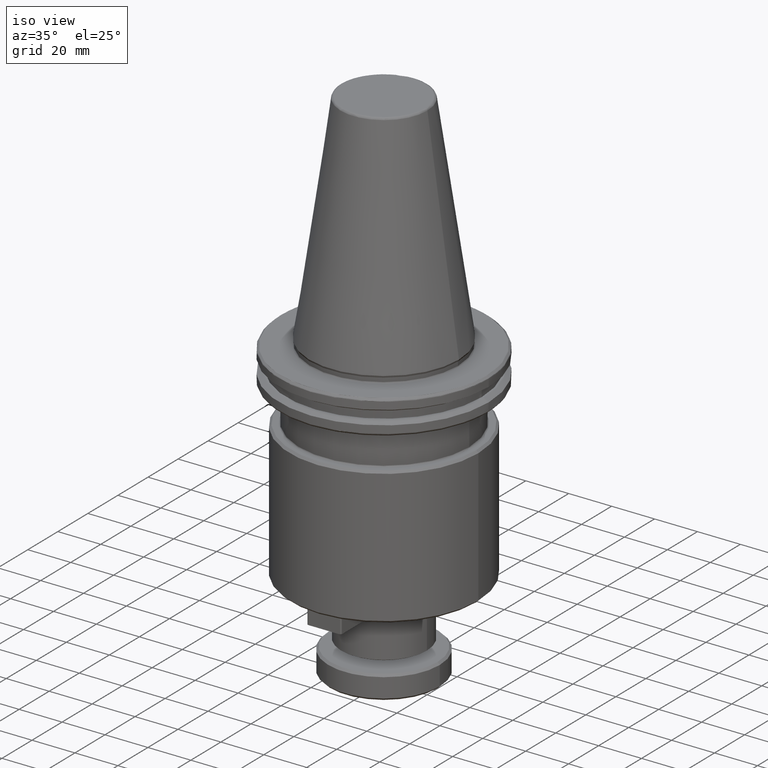
[diagram: clean part render]
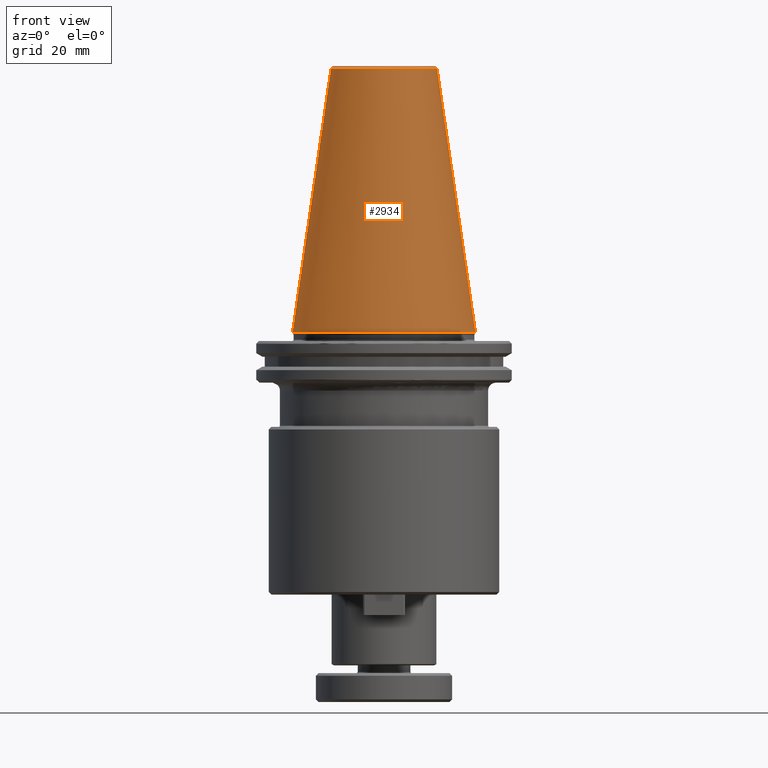
[diagram: tour spotlight — one face highlighted and labeled with its STEP entity id]
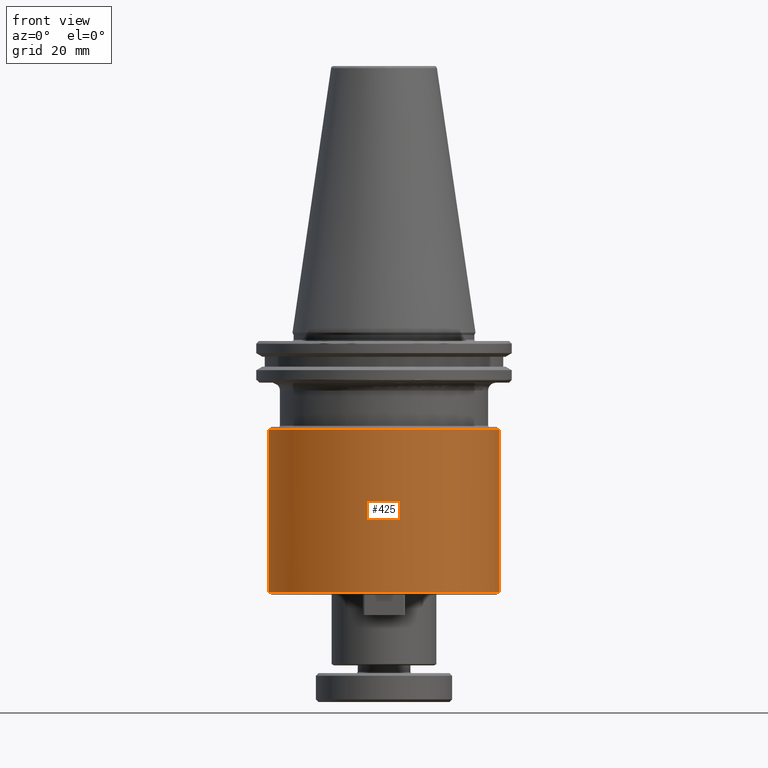
[diagram: tour spotlight — one face highlighted and labeled with its STEP entity id]
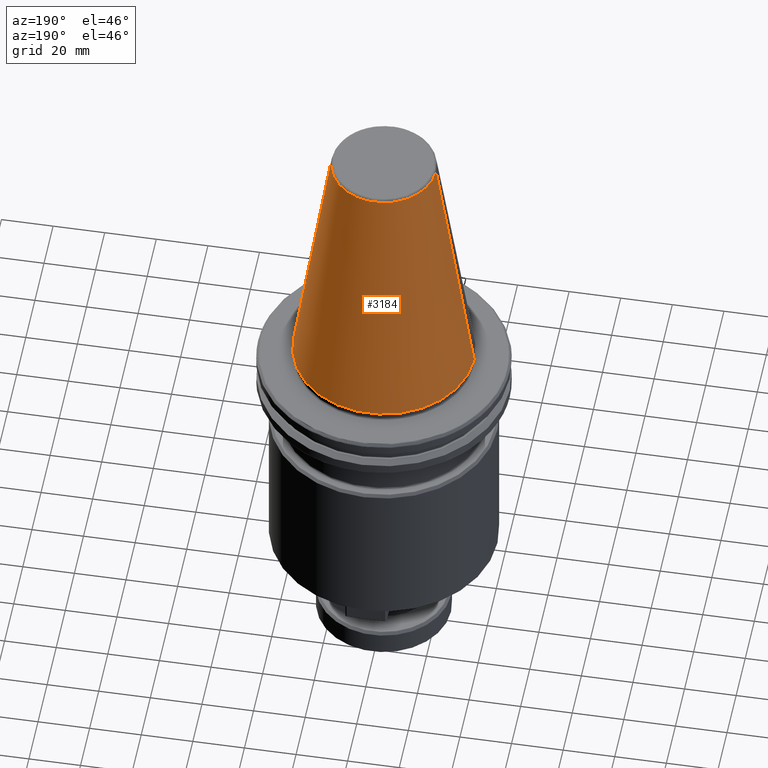
[diagram: tour spotlight — one face highlighted and labeled with its STEP entity id]
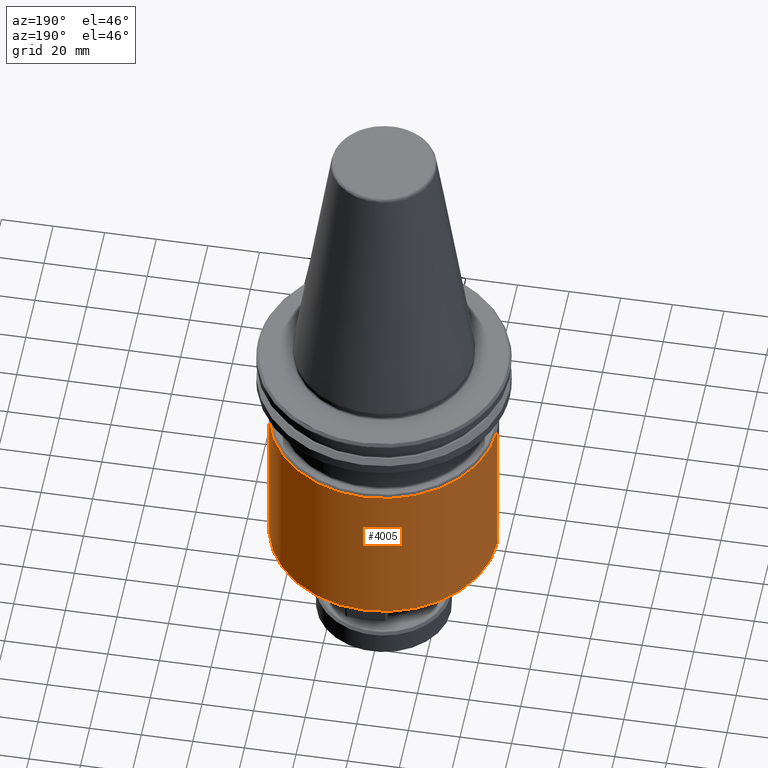
[diagram: tour spotlight — one face highlighted and labeled with its STEP entity id]
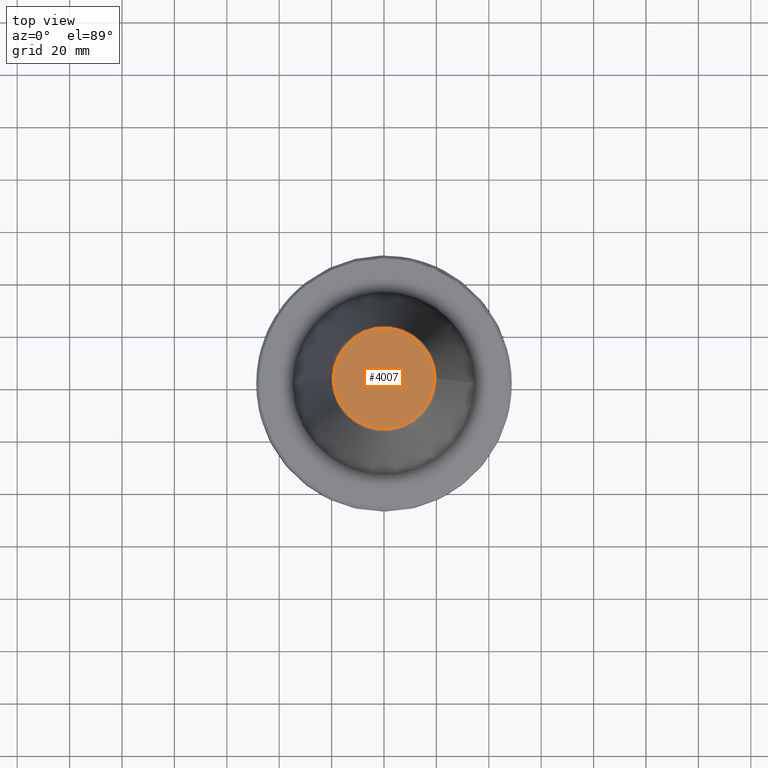
[diagram: tour spotlight — one face highlighted and labeled with its STEP entity id]
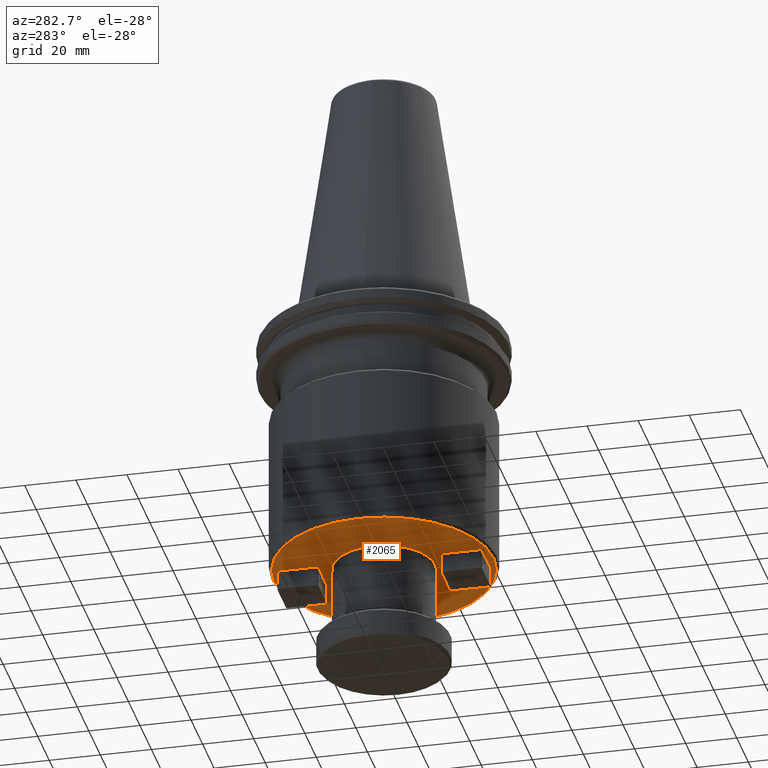
[diagram: tour spotlight — one face highlighted and labeled with its STEP entity id]
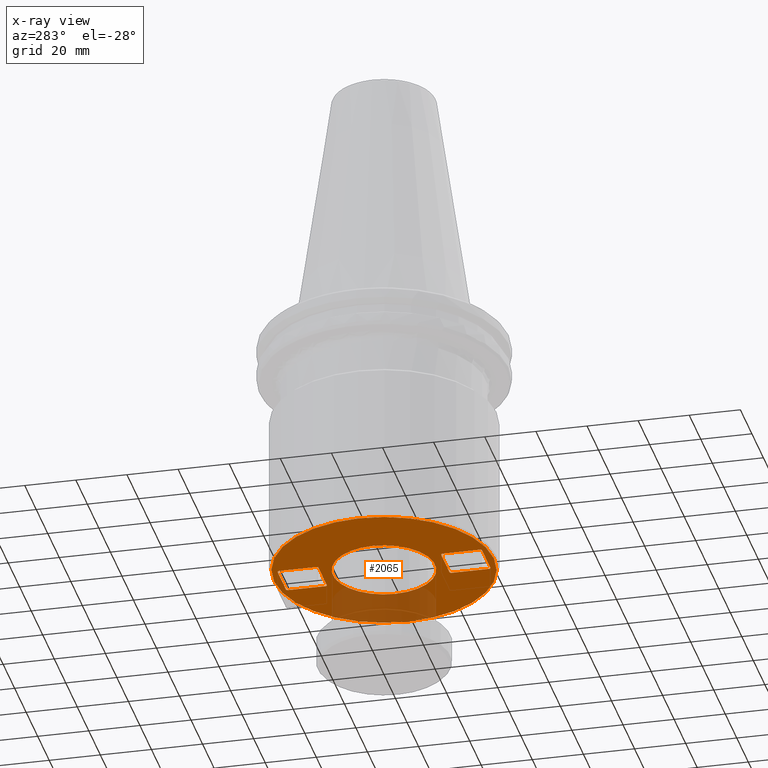
[diagram: x-ray of the same camera — body ghosted, this tour face saturated]
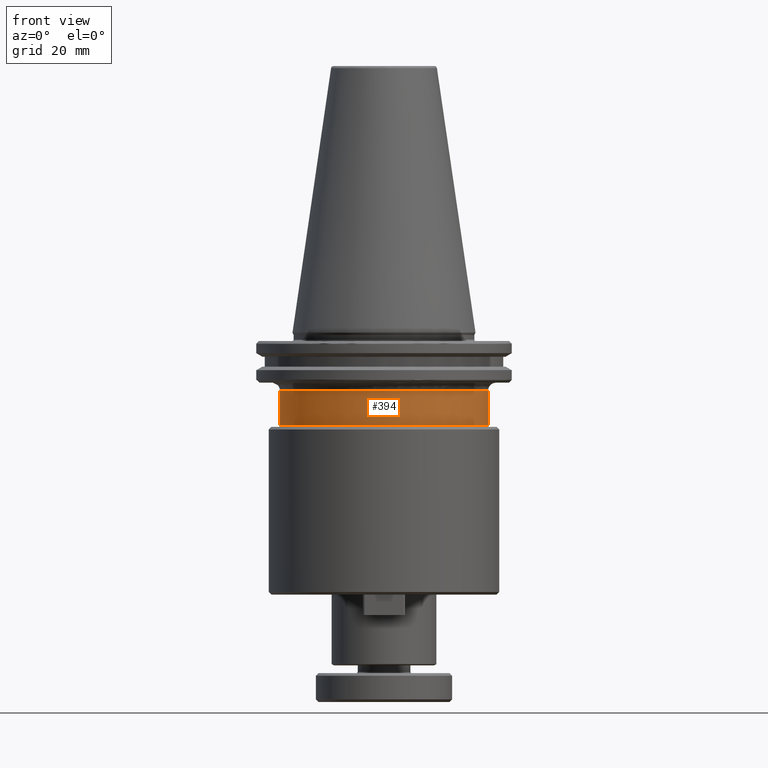
[diagram: tour spotlight — one face highlighted and labeled with its STEP entity id]
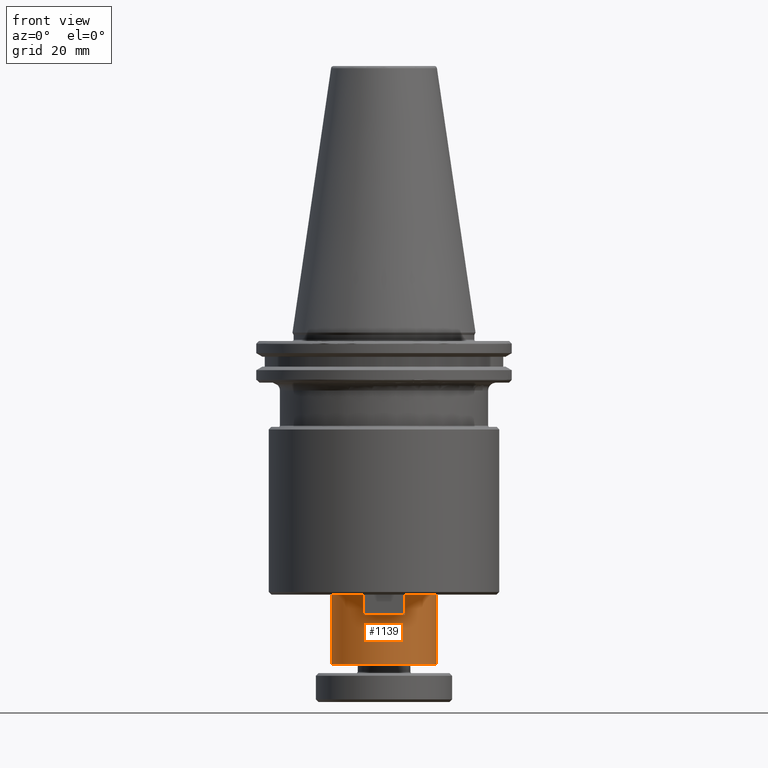
[diagram: tour spotlight — one face highlighted and labeled with its STEP entity id]
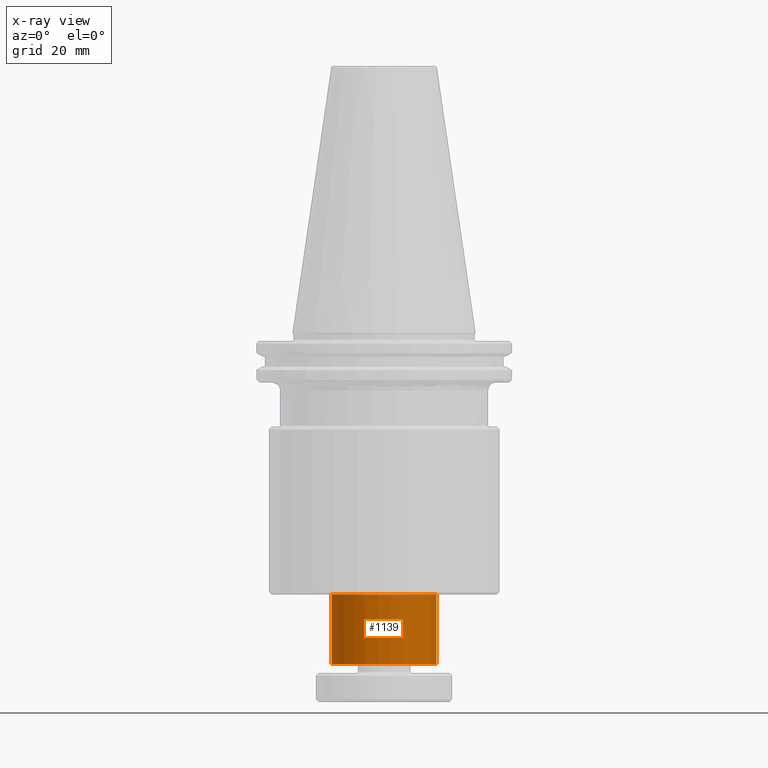
[diagram: x-ray of the same camera — body ghosted, this tour face saturated]
A machine part: a face-by-face anatomy tour. The part has 115 B-rep faces; the first image is the clean iso view, then the 8 largest visible faces are spotlighted one at a time (largest first), each with its STEP entity span.

Face 1 — front view, entity #2934. In plain terms, the highlighted conical surface has half-angle 8.297 deg.
Definition (entity closure, byte-faithful):
#72 = CARTESIAN_POINT ( 'NONE',  ( 0.0000000000000000000, 0.0000000000000000000, -1.387778780781445700E-014 ) ) ;
#294 = CONICAL_SURFACE ( 'NONE', #3702, 34.92499999999999700, 0.1448138465474189400 ) ;
#378 = DIRECTION ( 'NONE',  ( -1.000000000000000000, 0.0000000000000000000, 0.0000000000000000000 ) ) ;
#500 = VERTEX_POINT ( 'NONE', #2207 ) ;
#513 = EDGE_CURVE ( 'NONE', #1379, #4193, #1743, .T. ) ;
#630 = LINE ( 'NONE', #4962, #4385 ) ;
#978 = DIRECTION ( 'NONE',  ( 0.0000000000000000000, 0.0000000000000000000, -1.000000000000000000 ) ) ;
#1033 = DIRECTION ( 'NONE',  ( 0.0000000000000000000, 0.0000000000000000000, -1.000000000000000000 ) ) ;
#1166 = EDGE_LOOP ( 'NONE', ( #3206, #1440, #1237, #2269 ) ) ;
#1196 = CIRCLE ( 'NONE', #1844, 20.21110778703758000 ) ;
#1237 = ORIENTED_EDGE ( 'NONE', *, *, #3430, .T. ) ;
#1379 = VERTEX_POINT ( 'NONE', #2699 ) ;
#1440 = ORIENTED_EDGE ( 'NONE', *, *, #4122, .T. ) ;
#1682 = DIRECTION ( 'NONE',  ( 0.1443082272673069400, 1.767266086135362400E-017, -0.9895327864921743500 ) ) ;
#1743 = LINE ( 'NONE', #2246, #1751 ) ;
#1751 = VECTOR ( 'NONE', #1682, 1000.000000000000000 ) ;
#1844 = AXIS2_PLACEMENT_3D ( 'NONE', #3543, #1033, #3870 ) ;
#2207 = CARTESIAN_POINT ( 'NONE',  ( -34.92500000000000400, 4.277078946022131700E-015, 0.0000000000000000000 ) ) ;
#2246 = CARTESIAN_POINT ( 'NONE',  ( 34.92499999999999700, 4.277078946022130900E-015, -1.387778780781445700E-014 ) ) ;
#2269 = ORIENTED_EDGE ( 'NONE', *, *, #2720, .T. ) ;
#2699 = CARTESIAN_POINT ( 'NONE',  ( 20.21110778703758000, 3.376112895941951000E-015, 100.8943082272673000 ) ) ;
#2720 = EDGE_CURVE ( 'NONE', #500, #4193, #4009, .T. ) ;
#2934 = ADVANCED_FACE ( 'NONE', ( #3293 ), #294, .T. ) ;
#3206 = ORIENTED_EDGE ( 'NONE', *, *, #513, .F. ) ;
#3293 = FACE_OUTER_BOUND ( 'NONE', #1166, .T. ) ;
#3301 = AXIS2_PLACEMENT_3D ( 'NONE', #4199, #4449, #378 ) ;
#3430 = EDGE_CURVE ( 'NONE', #3680, #500, #630, .T. ) ;
#3543 = CARTESIAN_POINT ( 'NONE',  ( 0.0000000000000000000, 0.0000000000000000000, 100.8943082272673000 ) ) ;
#3680 = VERTEX_POINT ( 'NONE', #4190 ) ;
#3702 = AXIS2_PLACEMENT_3D ( 'NONE', #72, #978, #4294 ) ;
#3870 = DIRECTION ( 'NONE',  ( -1.000000000000000000, 0.0000000000000000000, 0.0000000000000000000 ) ) ;
#4009 = CIRCLE ( 'NONE', #3301, 34.92499999999999700 ) ;
#4122 = EDGE_CURVE ( 'NONE', #1379, #3680, #1196, .T. ) ;
#4190 = CARTESIAN_POINT ( 'NONE',  ( -20.21110778703758000, 0.0000000000000000000, 100.8943082272673000 ) ) ;
#4193 = VERTEX_POINT ( 'NONE', #4512 ) ;
#4199 = CARTESIAN_POINT ( 'NONE',  ( 0.0000000000000000000, 0.0000000000000000000, 0.0000000000000000000 ) ) ;
#4294 = DIRECTION ( 'NONE',  ( -1.000000000000000000, 0.0000000000000000000, 0.0000000000000000000 ) ) ;
#4385 = VECTOR ( 'NONE', #4980, 1000.000000000000000 ) ;
#4449 = DIRECTION ( 'NONE',  ( -0.0000000000000000000, -0.0000000000000000000, 1.000000000000000000 ) ) ;
#4512 = CARTESIAN_POINT ( 'NONE',  ( 34.92500000000000400, 0.0000000000000000000, 0.0000000000000000000 ) ) ;
#4962 = CARTESIAN_POINT ( 'NONE',  ( -34.92499999999999700, 0.0000000000000000000, -1.387778780781445700E-014 ) ) ;
#4980 = DIRECTION ( 'NONE',  ( -0.1443082272673069400, 0.0000000000000000000, -0.9895327864921743500 ) ) ;

Face 2 — front view, entity #425. In plain terms, the highlighted cylindrical surface (partial cylindrical patch) has radius 44 mm, axis along (0, 0, 1).
Definition (entity closure, byte-faithful):
#27 = CIRCLE ( 'NONE', #727, 44.00000000000000000 ) ;
#367 = ORIENTED_EDGE ( 'NONE', *, *, #542, .F. ) ;
#424 = DIRECTION ( 'NONE',  ( -0.0000000000000000000, -0.0000000000000000000, 1.000000000000000000 ) ) ;
#425 = ADVANCED_FACE ( 'NONE', ( #1612 ), #1728, .T. ) ;
#459 = DIRECTION ( 'NONE',  ( 1.000000000000000000, 0.0000000000000000000, 0.0000000000000000000 ) ) ;
#465 = DIRECTION ( 'NONE',  ( 0.0000000000000000000, 0.0000000000000000000, 1.000000000000000000 ) ) ;
#489 = CARTESIAN_POINT ( 'NONE',  ( 0.0000000000000000000, 0.0000000000000000000, -99.00000000000000000 ) ) ;
#542 = EDGE_CURVE ( 'NONE', #4865, #1433, #1869, .T. ) ;
#727 = AXIS2_PLACEMENT_3D ( 'NONE', #489, #465, #459 ) ;
#745 = EDGE_LOOP ( 'NONE', ( #367, #1983, #4974, #1990 ) ) ;
#1331 = DIRECTION ( 'NONE',  ( 0.0000000000000000000, 0.0000000000000000000, 1.000000000000000000 ) ) ;
#1419 = CARTESIAN_POINT ( 'NONE',  ( 0.0000000000000000000, 0.0000000000000000000, 0.0000000000000000000 ) ) ;
#1433 = VERTEX_POINT ( 'NONE', #2407 ) ;
#1482 = VERTEX_POINT ( 'NONE', #2325 ) ;
#1612 = FACE_OUTER_BOUND ( 'NONE', #745, .T. ) ;
#1676 = CIRCLE ( 'NONE', #4725, 44.00000000000000000 ) ;
#1728 = CYLINDRICAL_SURFACE ( 'NONE', #4622, 44.00000000000000000 ) ;
#1869 = LINE ( 'NONE', #2020, #1871 ) ;
#1871 = VECTOR ( 'NONE', #4396, 1000.000000000000000 ) ;
#1983 = ORIENTED_EDGE ( 'NONE', *, *, #2573, .T. ) ;
#1990 = ORIENTED_EDGE ( 'NONE', *, *, #3935, .F. ) ;
#2020 = CARTESIAN_POINT ( 'NONE',  ( -44.00000000000000000, 5.388445916248353600E-015, 0.0000000000000000000 ) ) ;
#2325 = CARTESIAN_POINT ( 'NONE',  ( 44.00000000000000000, 0.0000000000000000000, -99.00000000000000000 ) ) ;
#2407 = CARTESIAN_POINT ( 'NONE',  ( -44.00000000000000000, 5.388445916248353600E-015, -37.00000000000000700 ) ) ;
#2573 = EDGE_CURVE ( 'NONE', #4865, #1482, #27, .T. ) ;
#2975 = CARTESIAN_POINT ( 'NONE',  ( 0.0000000000000000000, 0.0000000000000000000, -37.00000000000000700 ) ) ;
#3193 = DIRECTION ( 'NONE',  ( 1.000000000000000000, 0.0000000000000000000, 0.0000000000000000000 ) ) ;
#3384 = DIRECTION ( 'NONE',  ( -1.000000000000000000, 0.0000000000000000000, 0.0000000000000000000 ) ) ;
#3553 = CARTESIAN_POINT ( 'NONE',  ( -44.00000000000000000, 5.388445916248353600E-015, -99.00000000000000000 ) ) ;
#3859 = CARTESIAN_POINT ( 'NONE',  ( 44.00000000000000000, 0.0000000000000000000, -37.00000000000000700 ) ) ;
#3896 = DIRECTION ( 'NONE',  ( 0.0000000000000000000, 0.0000000000000000000, 1.000000000000000000 ) ) ;
#3935 = EDGE_CURVE ( 'NONE', #1433, #4782, #1676, .T. ) ;
#4141 = VECTOR ( 'NONE', #3896, 1000.000000000000000 ) ;
#4208 = CARTESIAN_POINT ( 'NONE',  ( 44.00000000000000000, 0.0000000000000000000, 0.0000000000000000000 ) ) ;
#4396 = DIRECTION ( 'NONE',  ( 0.0000000000000000000, 0.0000000000000000000, 1.000000000000000000 ) ) ;
#4622 = AXIS2_PLACEMENT_3D ( 'NONE', #1419, #1331, #3193 ) ;
#4725 = AXIS2_PLACEMENT_3D ( 'NONE', #2975, #424, #3384 ) ;
#4782 = VERTEX_POINT ( 'NONE', #3859 ) ;
#4865 = VERTEX_POINT ( 'NONE', #3553 ) ;
#4907 = LINE ( 'NONE', #4208, #4141 ) ;
#4974 = ORIENTED_EDGE ( 'NONE', *, *, #5001, .T. ) ;
#5001 = EDGE_CURVE ( 'NONE', #1482, #4782, #4907, .T. ) ;

Face 3 — auxiliary view, entity #3184. In plain terms, the highlighted conical surface has half-angle 8.297 deg.
Definition (entity closure, byte-faithful):
#134 = DIRECTION ( 'NONE',  ( -1.000000000000000000, 0.0000000000000000000, 0.0000000000000000000 ) ) ;
#138 = EDGE_CURVE ( 'NONE', #3680, #1379, #740, .T. ) ;
#144 = DIRECTION ( 'NONE',  ( -0.0000000000000000000, -0.0000000000000000000, 1.000000000000000000 ) ) ;
#150 = CARTESIAN_POINT ( 'NONE',  ( 0.0000000000000000000, 0.0000000000000000000, 0.0000000000000000000 ) ) ;
#196 = ORIENTED_EDGE ( 'NONE', *, *, #876, .T. ) ;
#442 = AXIS2_PLACEMENT_3D ( 'NONE', #5008, #4868, #3241 ) ;
#500 = VERTEX_POINT ( 'NONE', #2207 ) ;
#512 = AXIS2_PLACEMENT_3D ( 'NONE', #150, #144, #134 ) ;
#513 = EDGE_CURVE ( 'NONE', #1379, #4193, #1743, .T. ) ;
#630 = LINE ( 'NONE', #4962, #4385 ) ;
#740 = CIRCLE ( 'NONE', #442, 20.21110778703758000 ) ;
#876 = EDGE_CURVE ( 'NONE', #4193, #500, #2384, .T. ) ;
#1056 = FACE_OUTER_BOUND ( 'NONE', #4071, .T. ) ;
#1379 = VERTEX_POINT ( 'NONE', #2699 ) ;
#1519 = ORIENTED_EDGE ( 'NONE', *, *, #138, .T. ) ;
#1682 = DIRECTION ( 'NONE',  ( 0.1443082272673069400, 1.767266086135362400E-017, -0.9895327864921743500 ) ) ;
#1713 = ORIENTED_EDGE ( 'NONE', *, *, #3430, .F. ) ;
#1743 = LINE ( 'NONE', #2246, #1751 ) ;
#1751 = VECTOR ( 'NONE', #1682, 1000.000000000000000 ) ;
#2046 = ORIENTED_EDGE ( 'NONE', *, *, #513, .T. ) ;
#2207 = CARTESIAN_POINT ( 'NONE',  ( -34.92500000000000400, 4.277078946022131700E-015, 0.0000000000000000000 ) ) ;
#2246 = CARTESIAN_POINT ( 'NONE',  ( 34.92499999999999700, 4.277078946022130900E-015, -1.387778780781445700E-014 ) ) ;
#2275 = AXIS2_PLACEMENT_3D ( 'NONE', #4034, #3999, #4038 ) ;
#2384 = CIRCLE ( 'NONE', #512, 34.92499999999999700 ) ;
#2699 = CARTESIAN_POINT ( 'NONE',  ( 20.21110778703758000, 3.376112895941951000E-015, 100.8943082272673000 ) ) ;
#3184 = ADVANCED_FACE ( 'NONE', ( #1056 ), #3805, .T. ) ;
#3241 = DIRECTION ( 'NONE',  ( -1.000000000000000000, 0.0000000000000000000, 0.0000000000000000000 ) ) ;
#3430 = EDGE_CURVE ( 'NONE', #3680, #500, #630, .T. ) ;
#3680 = VERTEX_POINT ( 'NONE', #4190 ) ;
#3805 = CONICAL_SURFACE ( 'NONE', #2275, 34.92499999999999700, 0.1448138465474189400 ) ;
#3999 = DIRECTION ( 'NONE',  ( 0.0000000000000000000, 0.0000000000000000000, -1.000000000000000000 ) ) ;
#4034 = CARTESIAN_POINT ( 'NONE',  ( 0.0000000000000000000, 0.0000000000000000000, -1.387778780781445700E-014 ) ) ;
#4038 = DIRECTION ( 'NONE',  ( -1.000000000000000000, 0.0000000000000000000, 0.0000000000000000000 ) ) ;
#4071 = EDGE_LOOP ( 'NONE', ( #1519, #2046, #196, #1713 ) ) ;
#4190 = CARTESIAN_POINT ( 'NONE',  ( -20.21110778703758000, 0.0000000000000000000, 100.8943082272673000 ) ) ;
#4193 = VERTEX_POINT ( 'NONE', #4512 ) ;
#4385 = VECTOR ( 'NONE', #4980, 1000.000000000000000 ) ;
#4512 = CARTESIAN_POINT ( 'NONE',  ( 34.92500000000000400, 0.0000000000000000000, 0.0000000000000000000 ) ) ;
#4868 = DIRECTION ( 'NONE',  ( 0.0000000000000000000, 0.0000000000000000000, -1.000000000000000000 ) ) ;
#4962 = CARTESIAN_POINT ( 'NONE',  ( -34.92499999999999700, 0.0000000000000000000, -1.387778780781445700E-014 ) ) ;
#4980 = DIRECTION ( 'NONE',  ( -0.1443082272673069400, 0.0000000000000000000, -0.9895327864921743500 ) ) ;
#5008 = CARTESIAN_POINT ( 'NONE',  ( 0.0000000000000000000, 0.0000000000000000000, 100.8943082272673000 ) ) ;

Face 4 — auxiliary view, entity #4005. In plain terms, the highlighted cylindrical surface (partial cylindrical patch) has radius 44 mm, axis along (0, 0, 1).
Definition (entity closure, byte-faithful):
#387 = CARTESIAN_POINT ( 'NONE',  ( 0.0000000000000000000, 0.0000000000000000000, 0.0000000000000000000 ) ) ;
#447 = AXIS2_PLACEMENT_3D ( 'NONE', #491, #498, #517 ) ;
#491 = CARTESIAN_POINT ( 'NONE',  ( 0.0000000000000000000, 0.0000000000000000000, -37.00000000000000700 ) ) ;
#498 = DIRECTION ( 'NONE',  ( -0.0000000000000000000, -0.0000000000000000000, 1.000000000000000000 ) ) ;
#517 = DIRECTION ( 'NONE',  ( -1.000000000000000000, 0.0000000000000000000, 0.0000000000000000000 ) ) ;
#542 = EDGE_CURVE ( 'NONE', #4865, #1433, #1869, .T. ) ;
#598 = ORIENTED_EDGE ( 'NONE', *, *, #2559, .F. ) ;
#1136 = EDGE_CURVE ( 'NONE', #1482, #4865, #2836, .T. ) ;
#1433 = VERTEX_POINT ( 'NONE', #2407 ) ;
#1482 = VERTEX_POINT ( 'NONE', #2325 ) ;
#1773 = DIRECTION ( 'NONE',  ( 0.0000000000000000000, 0.0000000000000000000, 1.000000000000000000 ) ) ;
#1869 = LINE ( 'NONE', #2020, #1871 ) ;
#1871 = VECTOR ( 'NONE', #4396, 1000.000000000000000 ) ;
#2020 = CARTESIAN_POINT ( 'NONE',  ( -44.00000000000000000, 5.388445916248353600E-015, 0.0000000000000000000 ) ) ;
#2194 = DIRECTION ( 'NONE',  ( 1.000000000000000000, 0.0000000000000000000, 0.0000000000000000000 ) ) ;
#2325 = CARTESIAN_POINT ( 'NONE',  ( 44.00000000000000000, 0.0000000000000000000, -99.00000000000000000 ) ) ;
#2391 = CYLINDRICAL_SURFACE ( 'NONE', #2783, 44.00000000000000000 ) ;
#2407 = CARTESIAN_POINT ( 'NONE',  ( -44.00000000000000000, 5.388445916248353600E-015, -37.00000000000000700 ) ) ;
#2448 = EDGE_LOOP ( 'NONE', ( #3014, #4573, #598, #3376 ) ) ;
#2559 = EDGE_CURVE ( 'NONE', #4782, #1433, #2957, .T. ) ;
#2783 = AXIS2_PLACEMENT_3D ( 'NONE', #387, #1773, #2194 ) ;
#2836 = CIRCLE ( 'NONE', #4049, 44.00000000000000000 ) ;
#2957 = CIRCLE ( 'NONE', #447, 44.00000000000000000 ) ;
#3014 = ORIENTED_EDGE ( 'NONE', *, *, #1136, .T. ) ;
#3376 = ORIENTED_EDGE ( 'NONE', *, *, #5001, .F. ) ;
#3553 = CARTESIAN_POINT ( 'NONE',  ( -44.00000000000000000, 5.388445916248353600E-015, -99.00000000000000000 ) ) ;
#3836 = DIRECTION ( 'NONE',  ( 1.000000000000000000, 0.0000000000000000000, 0.0000000000000000000 ) ) ;
#3839 = DIRECTION ( 'NONE',  ( 0.0000000000000000000, 0.0000000000000000000, 1.000000000000000000 ) ) ;
#3847 = CARTESIAN_POINT ( 'NONE',  ( 0.0000000000000000000, 0.0000000000000000000, -99.00000000000000000 ) ) ;
#3859 = CARTESIAN_POINT ( 'NONE',  ( 44.00000000000000000, 0.0000000000000000000, -37.00000000000000700 ) ) ;
#3896 = DIRECTION ( 'NONE',  ( 0.0000000000000000000, 0.0000000000000000000, 1.000000000000000000 ) ) ;
#4005 = ADVANCED_FACE ( 'NONE', ( #4797 ), #2391, .T. ) ;
#4049 = AXIS2_PLACEMENT_3D ( 'NONE', #3847, #3839, #3836 ) ;
#4141 = VECTOR ( 'NONE', #3896, 1000.000000000000000 ) ;
#4208 = CARTESIAN_POINT ( 'NONE',  ( 44.00000000000000000, 0.0000000000000000000, 0.0000000000000000000 ) ) ;
#4396 = DIRECTION ( 'NONE',  ( 0.0000000000000000000, 0.0000000000000000000, 1.000000000000000000 ) ) ;
#4573 = ORIENTED_EDGE ( 'NONE', *, *, #542, .T. ) ;
#4782 = VERTEX_POINT ( 'NONE', #3859 ) ;
#4797 = FACE_OUTER_BOUND ( 'NONE', #2448, .T. ) ;
#4865 = VERTEX_POINT ( 'NONE', #3553 ) ;
#4907 = LINE ( 'NONE', #4208, #4141 ) ;
#5001 = EDGE_CURVE ( 'NONE', #1482, #4782, #4907, .T. ) ;

Face 5 — top view, entity #4007. In plain terms, the highlighted planar face has unit normal (0, 0, 1).
Definition (entity closure, byte-faithful):
#55 = CARTESIAN_POINT ( 'NONE',  ( 19.22157500054540000, -38.44315000109079300, 101.7500000000000000 ) ) ;
#331 = CARTESIAN_POINT ( 'NONE',  ( 19.22157500054540000, 0.0000000000000000000, 101.7499999999999900 ) ) ;
#336 = CARTESIAN_POINT ( 'NONE',  ( -19.22157500054540000, 2.378200593091452200E-015, 101.7499999999999900 ) ) ;
#345 = CARTESIAN_POINT ( 'NONE',  ( 19.22157500054540000, 38.44315000109079300, 101.7500000000000000 ) ) ;
#369 = CARTESIAN_POINT ( 'NONE',  ( -19.22157500054539600, 38.44315000109079300, 101.7500000000000000 ) ) ;
#790 = EDGE_CURVE ( 'NONE', #1129, #2432, #4011, .T. ) ;
#915 = CARTESIAN_POINT ( 'NONE',  ( -19.22157500054540000, -38.44315000109079300, 101.7500000000000000 ) ) ;
#1008 =( BOUNDED_CURVE ( )  B_SPLINE_CURVE ( 3, ( #3023, #55, #915, #3791 ),
 .UNSPECIFIED., .F., .F. ) 
 B_SPLINE_CURVE_WITH_KNOTS ( ( 4, 4 ),
 ( 0.0000000000000000000, 1.000000000000000000 ),
 .UNSPECIFIED. ) 
 CURVE ( )  GEOMETRIC_REPRESENTATION_ITEM ( )  RATIONAL_B_SPLINE_CURVE ( ( 1.000000000000000000, 0.3333333333333333700, 0.3333333333333333700, 1.000000000000000000 ) ) 
 REPRESENTATION_ITEM ( '' )  );
#1129 = VERTEX_POINT ( 'NONE', #4092 ) ;
#1342 = DIRECTION ( 'NONE',  ( 0.0000000000000000000, 0.0000000000000000000, 1.000000000000000000 ) ) ;
#1838 = ORIENTED_EDGE ( 'NONE', *, *, #4033, .F. ) ;
#2084 = CARTESIAN_POINT ( 'NONE',  ( 19.22157500054540000, 0.0000000000000000000, 101.7499999999999900 ) ) ;
#2432 = VERTEX_POINT ( 'NONE', #2084 ) ;
#2564 = FACE_OUTER_BOUND ( 'NONE', #4053, .T. ) ;
#3023 = CARTESIAN_POINT ( 'NONE',  ( 19.22157500054540000, 0.0000000000000000000, 101.7499999999999900 ) ) ;
#3040 = AXIS2_PLACEMENT_3D ( 'NONE', #4711, #1342, #4100 ) ;
#3424 = PLANE ( 'NONE',  #3040 ) ;
#3633 = ORIENTED_EDGE ( 'NONE', *, *, #790, .F. ) ;
#3791 = CARTESIAN_POINT ( 'NONE',  ( -19.22157500054540000, 2.378200593091452200E-015, 101.7499999999999900 ) ) ;
#4007 = ADVANCED_FACE ( 'NONE', ( #2564 ), #3424, .T. ) ;
#4011 =( BOUNDED_CURVE ( )  B_SPLINE_CURVE ( 3, ( #336, #369, #345, #331 ),
 .UNSPECIFIED., .F., .T. ) 
 B_SPLINE_CURVE_WITH_KNOTS ( ( 4, 4 ),
 ( 0.0000000000000000000, 1.000000000000000000 ),
 .UNSPECIFIED. ) 
 CURVE ( )  GEOMETRIC_REPRESENTATION_ITEM ( )  RATIONAL_B_SPLINE_CURVE ( ( 1.000000000000000000, 0.3333333333333333700, 0.3333333333333333700, 1.000000000000000000 ) ) 
 REPRESENTATION_ITEM ( '' )  );
#4033 = EDGE_CURVE ( 'NONE', #2432, #1129, #1008, .T. ) ;
#4053 = EDGE_LOOP ( 'NONE', ( #3633, #1838 ) ) ;
#4092 = CARTESIAN_POINT ( 'NONE',  ( -19.22157500054540000, 2.378200593091452200E-015, 101.7499999999999900 ) ) ;
#4100 = DIRECTION ( 'NONE',  ( 1.000000000000000000, 0.0000000000000000000, -0.0000000000000000000 ) ) ;
#4711 = CARTESIAN_POINT ( 'NONE',  ( 0.0000000000000000000, 7.346249770921763000E-014, 101.7500000000000000 ) ) ;

Face 6 — auxiliary view, entity #2065. An x-ray twin of the same camera follows (body ghosted, this face saturated) — the face is partly hidden behind the body. In plain terms, the highlighted planar face has unit normal (0, 0, -1).
Definition (entity closure, byte-faithful):
#3 = CARTESIAN_POINT ( 'NONE',  ( -7.999999999999992900, 39.49999999999992200, -100.0000000000000000 ) ) ;
#53 = CARTESIAN_POINT ( 'NONE',  ( 0.0000000000000000000, 24.00000000000000000, -100.0000000000000000 ) ) ;
#71 = CARTESIAN_POINT ( 'NONE',  ( 7.999999999999989300, 24.50000000000008500, -100.0000000000000000 ) ) ;
#133 = DIRECTION ( 'NONE',  ( 0.7071067811865672200, -0.7071067811865279200, -0.0000000000000000000 ) ) ;
#166 = VECTOR ( 'NONE', #385, 1000.000000000000000 ) ;
#195 = DIRECTION ( 'NONE',  ( 1.000000000000000000, 0.0000000000000000000, 0.0000000000000000000 ) ) ;
#200 = DIRECTION ( 'NONE',  ( 0.0000000000000000000, -0.0000000000000000000, 1.000000000000000000 ) ) ;
#206 = ORIENTED_EDGE ( 'NONE', *, *, #3526, .F. ) ;
#210 = CARTESIAN_POINT ( 'NONE',  ( 0.0000000000000000000, 0.0000000000000000000, -100.0000000000000000 ) ) ;
#249 = LINE ( 'NONE', #4195, #2203 ) ;
#290 = ORIENTED_EDGE ( 'NONE', *, *, #4381, .T. ) ;
#292 = ORIENTED_EDGE ( 'NONE', *, *, #1192, .T. ) ;
#303 = CARTESIAN_POINT ( 'NONE',  ( 7.999999999999992900, 39.49999999999997900, -100.0000000000000000 ) ) ;
#312 = EDGE_CURVE ( 'NONE', #4565, #1540, #1055, .T. ) ;
#343 = VERTEX_POINT ( 'NONE', #3381 ) ;
#358 = ORIENTED_EDGE ( 'NONE', *, *, #312, .T. ) ;
#364 = VERTEX_POINT ( 'NONE', #1410 ) ;
#385 = DIRECTION ( 'NONE',  ( 1.000000000000000000, -0.0000000000000000000, 0.0000000000000000000 ) ) ;
#407 = DIRECTION ( 'NONE',  ( 0.7071067811865279200, 0.7071067811865671100, -0.0000000000000000000 ) ) ;
#410 = VERTEX_POINT ( 'NONE', #3982 ) ;
#449 = CARTESIAN_POINT ( 'NONE',  ( -8.000000000000000000, 24.50000000000001400, -100.0000000000000000 ) ) ;
#477 = DIRECTION ( 'NONE',  ( -0.0000000000000000000, -1.000000000000000000, -0.0000000000000000000 ) ) ;
#487 = LINE ( 'NONE', #680, #1315 ) ;
#497 = ORIENTED_EDGE ( 'NONE', *, *, #4880, .T. ) ;
#507 = CARTESIAN_POINT ( 'NONE',  ( -7.999999999999989300, -43.00000000000000000, -100.0000000000000000 ) ) ;
#632 = DIRECTION ( 'NONE',  ( 1.000000000000000000, 0.0000000000000000000, 0.0000000000000000000 ) ) ;
#639 = DIRECTION ( 'NONE',  ( 0.0000000000000000000, 0.0000000000000000000, 1.000000000000000000 ) ) ;
#659 = CARTESIAN_POINT ( 'NONE',  ( 0.0000000000000000000, 0.0000000000000000000, -100.0000000000000000 ) ) ;
#666 = DIRECTION ( 'NONE',  ( -0.7071067811865279200, -0.7071067811865671100, -0.0000000000000000000 ) ) ;
#676 = CARTESIAN_POINT ( 'NONE',  ( 0.0000000000000000000, 0.0000000000000000000, -100.0000000000000000 ) ) ;
#680 = CARTESIAN_POINT ( 'NONE',  ( -7.499999999999936900, 40.00000000000000700, -100.0000000000000000 ) ) ;
#693 = DIRECTION ( 'NONE',  ( -1.000000000000000000, 0.0000000000000000000, -0.0000000000000000000 ) ) ;
#756 = EDGE_CURVE ( 'NONE', #1540, #343, #1322, .T. ) ;
#850 = EDGE_CURVE ( 'NONE', #4889, #4773, #2393, .T. ) ;
#853 = CARTESIAN_POINT ( 'NONE',  ( -7.999999999999992900, -39.49999999999997900, -100.0000000000000000 ) ) ;
#934 = VERTEX_POINT ( 'NONE', #71 ) ;
#956 = AXIS2_PLACEMENT_3D ( 'NONE', #2971, #2983, #2931 ) ;
#1006 = AXIS2_PLACEMENT_3D ( 'NONE', #676, #1090, #1173 ) ;
#1055 = LINE ( 'NONE', #3895, #1190 ) ;
#1090 = DIRECTION ( 'NONE',  ( 0.0000000000000000000, -0.0000000000000000000, 1.000000000000000000 ) ) ;
#1112 = AXIS2_PLACEMENT_3D ( 'NONE', #3717, #3723, #3727 ) ;
#1172 = VERTEX_POINT ( 'NONE', #1346 ) ;
#1173 = DIRECTION ( 'NONE',  ( 1.000000000000000000, 0.0000000000000000000, 0.0000000000000000000 ) ) ;
#1187 = VECTOR ( 'NONE', #407, 1000.000000000000000 ) ;
#1190 = VECTOR ( 'NONE', #1231, 1000.000000000000000 ) ;
#1192 = EDGE_CURVE ( 'NONE', #4900, #934, #2918, .T. ) ;
#1231 = DIRECTION ( 'NONE',  ( -0.7071067811865279200, -0.7071067811865671100, -0.0000000000000000000 ) ) ;
#1235 = EDGE_LOOP ( 'NONE', ( #2700, #3734, #4324, #358, #3991, #2629, #4374, #4272 ) ) ;
#1253 = CARTESIAN_POINT ( 'NONE',  ( 7.999999999999989300, -43.00000000000000000, -100.0000000000000000 ) ) ;
#1315 = VECTOR ( 'NONE', #666, 1000.000000000000000 ) ;
#1322 = LINE ( 'NONE', #507, #2254 ) ;
#1334 = CARTESIAN_POINT ( 'NONE',  ( -7.499999999999932500, -24.00000000000000000, -100.0000000000000000 ) ) ;
#1346 = CARTESIAN_POINT ( 'NONE',  ( 7.999999999999991100, 39.49999999999997900, -100.0000000000000000 ) ) ;
#1364 = EDGE_CURVE ( 'NONE', #2257, #4746, #3406, .T. ) ;
#1396 = ORIENTED_EDGE ( 'NONE', *, *, #2509, .T. ) ;
#1405 = CARTESIAN_POINT ( 'NONE',  ( -7.499999999999936900, 40.00000000000000700, -100.0000000000000000 ) ) ;
#1410 = CARTESIAN_POINT ( 'NONE',  ( -20.00000000000000000, 2.449293598294706500E-015, -100.0000000000000000 ) ) ;
#1462 = CARTESIAN_POINT ( 'NONE',  ( 7.999999999999994700, -24.50000000000000400, -100.0000000000000000 ) ) ;
#1506 = EDGE_CURVE ( 'NONE', #4830, #3531, #3533, .T. ) ;
#1540 = VERTEX_POINT ( 'NONE', #1902 ) ;
#1586 = ORIENTED_EDGE ( 'NONE', *, *, #1364, .T. ) ;
#1691 = CARTESIAN_POINT ( 'NONE',  ( 20.00000000000000000, 0.0000000000000000000, -100.0000000000000000 ) ) ;
#1842 = VERTEX_POINT ( 'NONE', #449 ) ;
#1859 = VERTEX_POINT ( 'NONE', #3699 ) ;
#1902 = CARTESIAN_POINT ( 'NONE',  ( -7.999999999999989300, -24.50000000000008500, -100.0000000000000000 ) ) ;
#1905 = DIRECTION ( 'NONE',  ( -0.0000000000000000000, -1.000000000000000000, -0.0000000000000000000 ) ) ;
#1925 = CARTESIAN_POINT ( 'NONE',  ( 7.499999999999932500, 24.00000000000000000, -100.0000000000000000 ) ) ;
#1965 = VERTEX_POINT ( 'NONE', #4791 ) ;
#1966 = EDGE_CURVE ( 'NONE', #1172, #2257, #4677, .T. ) ;
#1988 = EDGE_CURVE ( 'NONE', #1859, #4166, #4723, .T. ) ;
#2049 = CARTESIAN_POINT ( 'NONE',  ( 0.0000000000000000000, -24.00000000000000400, -100.0000000000000000 ) ) ;
#2063 = LINE ( 'NONE', #2049, #2950 ) ;
#2065 = ADVANCED_FACE ( 'NONE', ( #4673, #4841, #4794, #4838 ), #3551, .T. ) ;
#2098 = CARTESIAN_POINT ( 'NONE',  ( 7.999999999999992900, -24.50000000000000400, -100.0000000000000000 ) ) ;
#2178 = CARTESIAN_POINT ( 'NONE',  ( 7.499999999999936900, -40.00000000000000700, -100.0000000000000000 ) ) ;
#2203 = VECTOR ( 'NONE', #1905, 1000.000000000000000 ) ;
#2215 = CARTESIAN_POINT ( 'NONE',  ( -7.999999999999992900, 24.50000000000000400, -100.0000000000000000 ) ) ;
#2221 = DIRECTION ( 'NONE',  ( -0.7071067811865474600, 0.7071067811865474600, -0.0000000000000000000 ) ) ;
#2241 = ORIENTED_EDGE ( 'NONE', *, *, #850, .F. ) ;
#2254 = VECTOR ( 'NONE', #477, 1000.000000000000000 ) ;
#2257 = VERTEX_POINT ( 'NONE', #2529 ) ;
#2300 = DIRECTION ( 'NONE',  ( -0.7071067811865672200, 0.7071067811865279200, -0.0000000000000000000 ) ) ;
#2343 = ORIENTED_EDGE ( 'NONE', *, *, #3109, .T. ) ;
#2393 = CIRCLE ( 'NONE', #4756, 43.00000000000000000 ) ;
#2401 = LINE ( 'NONE', #853, #4697 ) ;
#2509 = EDGE_CURVE ( 'NONE', #4746, #4471, #487, .T. ) ;
#2521 = EDGE_CURVE ( 'NONE', #4366, #364, #3944, .T. ) ;
#2529 = CARTESIAN_POINT ( 'NONE',  ( 7.499999999999965400, 40.00000000000000700, -100.0000000000000000 ) ) ;
#2545 = EDGE_LOOP ( 'NONE', ( #497, #4311, #2884, #292, #290, #4080, #1586, #1396 ) ) ;
#2554 = LINE ( 'NONE', #4269, #3954 ) ;
#2565 = CARTESIAN_POINT ( 'NONE',  ( 7.499999999999967100, -24.00000000000000700, -100.0000000000000000 ) ) ;
#2629 = ORIENTED_EDGE ( 'NONE', *, *, #3971, .T. ) ;
#2653 = CIRCLE ( 'NONE', #1112, 20.00000000000000000 ) ;
#2684 = CARTESIAN_POINT ( 'NONE',  ( 0.0000000000000000000, 40.00000000000001400, -100.0000000000000000 ) ) ;
#2700 = ORIENTED_EDGE ( 'NONE', *, *, #3255, .T. ) ;
#2772 = DIRECTION ( 'NONE',  ( -1.000000000000000000, 0.0000000000000000000, -0.0000000000000000000 ) ) ;
#2814 = CARTESIAN_POINT ( 'NONE',  ( 0.0000000000000000000, -40.00000000000000700, -100.0000000000000000 ) ) ;
#2829 = EDGE_LOOP ( 'NONE', ( #4075, #2343 ) ) ;
#2884 = ORIENTED_EDGE ( 'NONE', *, *, #2977, .T. ) ;
#2907 = LINE ( 'NONE', #2178, #1187 ) ;
#2918 = LINE ( 'NONE', #3579, #3143 ) ;
#2931 = DIRECTION ( 'NONE',  ( -1.000000000000000000, 0.0000000000000000000, -0.0000000000000000000 ) ) ;
#2950 = VECTOR ( 'NONE', #693, 1000.000000000000000 ) ;
#2951 = EDGE_CURVE ( 'NONE', #1842, #410, #3690, .T. ) ;
#2971 = CARTESIAN_POINT ( 'NONE',  ( 0.0000000000000000000, -43.00000000000000000, -100.0000000000000000 ) ) ;
#2977 = EDGE_CURVE ( 'NONE', #410, #4900, #4136, .T. ) ;
#2983 = DIRECTION ( 'NONE',  ( 0.0000000000000000000, 0.0000000000000000000, -1.000000000000000000 ) ) ;
#3027 = EDGE_CURVE ( 'NONE', #4166, #1965, #2907, .T. ) ;
#3109 = EDGE_CURVE ( 'NONE', #364, #4366, #2653, .T. ) ;
#3143 = VECTOR ( 'NONE', #3757, 1000.000000000000000 ) ;
#3255 = EDGE_CURVE ( 'NONE', #1965, #4830, #2554, .T. ) ;
#3342 = VECTOR ( 'NONE', #2772, 1000.000000000000000 ) ;
#3381 = CARTESIAN_POINT ( 'NONE',  ( -7.999999999999989300, -39.49999999999997900, -100.0000000000000000 ) ) ;
#3406 = LINE ( 'NONE', #2684, #3342 ) ;
#3515 = CARTESIAN_POINT ( 'NONE',  ( -43.00000000000000000, 5.327213576290986000E-015, -100.0000000000000000 ) ) ;
#3526 = EDGE_CURVE ( 'NONE', #4773, #4889, #4789, .T. ) ;
#3531 = VERTEX_POINT ( 'NONE', #2565 ) ;
#3533 = LINE ( 'NONE', #2098, #3910 ) ;
#3551 = PLANE ( 'NONE',  #956 ) ;
#3579 = CARTESIAN_POINT ( 'NONE',  ( 7.499999999999933400, 24.00000000000000400, -100.0000000000000000 ) ) ;
#3646 = AXIS2_PLACEMENT_3D ( 'NONE', #659, #639, #632 ) ;
#3690 = LINE ( 'NONE', #2215, #3787 ) ;
#3699 = CARTESIAN_POINT ( 'NONE',  ( -7.499999999999965400, -40.00000000000000700, -100.0000000000000000 ) ) ;
#3717 = CARTESIAN_POINT ( 'NONE',  ( 0.0000000000000000000, 0.0000000000000000000, -100.0000000000000000 ) ) ;
#3723 = DIRECTION ( 'NONE',  ( 0.0000000000000000000, 0.0000000000000000000, 1.000000000000000000 ) ) ;
#3727 = DIRECTION ( 'NONE',  ( 1.000000000000000000, 0.0000000000000000000, 0.0000000000000000000 ) ) ;
#3734 = ORIENTED_EDGE ( 'NONE', *, *, #1506, .T. ) ;
#3746 = DIRECTION ( 'NONE',  ( 0.7071067811865474600, -0.7071067811865474600, -0.0000000000000000000 ) ) ;
#3757 = DIRECTION ( 'NONE',  ( 0.7071067811865279200, 0.7071067811865671100, -0.0000000000000000000 ) ) ;
#3787 = VECTOR ( 'NONE', #133, 1000.000000000000000 ) ;
#3797 = DIRECTION ( 'NONE',  ( 1.000000000000000000, -0.0000000000000000000, 0.0000000000000000000 ) ) ;
#3877 = CARTESIAN_POINT ( 'NONE',  ( 43.00000000000000000, 0.0000000000000000000, -100.0000000000000000 ) ) ;
#3895 = CARTESIAN_POINT ( 'NONE',  ( -7.499999999999933400, -24.00000000000000400, -100.0000000000000000 ) ) ;
#3910 = VECTOR ( 'NONE', #2300, 1000.000000000000000 ) ;
#3944 = CIRCLE ( 'NONE', #3646, 20.00000000000000000 ) ;
#3954 = VECTOR ( 'NONE', #4286, 1000.000000000000000 ) ;
#3971 = EDGE_CURVE ( 'NONE', #343, #1859, #2401, .T. ) ;
#3982 = CARTESIAN_POINT ( 'NONE',  ( -7.499999999999967100, 24.00000000000000000, -100.0000000000000000 ) ) ;
#3991 = ORIENTED_EDGE ( 'NONE', *, *, #756, .T. ) ;
#4075 = ORIENTED_EDGE ( 'NONE', *, *, #2521, .T. ) ;
#4080 = ORIENTED_EDGE ( 'NONE', *, *, #1966, .T. ) ;
#4136 = LINE ( 'NONE', #53, #166 ) ;
#4166 = VERTEX_POINT ( 'NONE', #4827 ) ;
#4195 = CARTESIAN_POINT ( 'NONE',  ( -7.999999999999992900, -43.00000000000000000, -100.0000000000000000 ) ) ;
#4269 = CARTESIAN_POINT ( 'NONE',  ( 7.999999999999992900, -43.00000000000000000, -100.0000000000000000 ) ) ;
#4272 = ORIENTED_EDGE ( 'NONE', *, *, #3027, .T. ) ;
#4281 = EDGE_LOOP ( 'NONE', ( #2241, #206 ) ) ;
#4286 = DIRECTION ( 'NONE',  ( 0.0000000000000000000, 1.000000000000000000, 0.0000000000000000000 ) ) ;
#4307 = EDGE_CURVE ( 'NONE', #3531, #4565, #2063, .T. ) ;
#4311 = ORIENTED_EDGE ( 'NONE', *, *, #2951, .T. ) ;
#4324 = ORIENTED_EDGE ( 'NONE', *, *, #4307, .T. ) ;
#4333 = VECTOR ( 'NONE', #4657, 1000.000000000000000 ) ;
#4366 = VERTEX_POINT ( 'NONE', #1691 ) ;
#4374 = ORIENTED_EDGE ( 'NONE', *, *, #1988, .T. ) ;
#4381 = EDGE_CURVE ( 'NONE', #934, #1172, #4727, .T. ) ;
#4471 = VERTEX_POINT ( 'NONE', #3 ) ;
#4565 = VERTEX_POINT ( 'NONE', #1334 ) ;
#4657 = DIRECTION ( 'NONE',  ( 0.0000000000000000000, 1.000000000000000000, 0.0000000000000000000 ) ) ;
#4673 = FACE_BOUND ( 'NONE', #2545, .T. ) ;
#4676 = VECTOR ( 'NONE', #2221, 1000.000000000000100 ) ;
#4677 = LINE ( 'NONE', #303, #4676 ) ;
#4697 = VECTOR ( 'NONE', #3746, 1000.000000000000100 ) ;
#4723 = LINE ( 'NONE', #2814, #4739 ) ;
#4727 = LINE ( 'NONE', #1253, #4333 ) ;
#4739 = VECTOR ( 'NONE', #3797, 1000.000000000000000 ) ;
#4746 = VERTEX_POINT ( 'NONE', #1405 ) ;
#4756 = AXIS2_PLACEMENT_3D ( 'NONE', #210, #200, #195 ) ;
#4773 = VERTEX_POINT ( 'NONE', #3515 ) ;
#4789 = CIRCLE ( 'NONE', #1006, 43.00000000000000000 ) ;
#4791 = CARTESIAN_POINT ( 'NONE',  ( 7.999999999999992900, -39.49999999999992200, -100.0000000000000000 ) ) ;
#4794 = FACE_BOUND ( 'NONE', #2829, .T. ) ;
#4827 = CARTESIAN_POINT ( 'NONE',  ( 7.499999999999936900, -40.00000000000000700, -100.0000000000000000 ) ) ;
#4830 = VERTEX_POINT ( 'NONE', #1462 ) ;
#4838 = FACE_BOUND ( 'NONE', #1235, .T. ) ;
#4841 = FACE_OUTER_BOUND ( 'NONE', #4281, .T. ) ;
#4880 = EDGE_CURVE ( 'NONE', #4471, #1842, #249, .T. ) ;
#4889 = VERTEX_POINT ( 'NONE', #3877 ) ;
#4900 = VERTEX_POINT ( 'NONE', #1925 ) ;

Face 7 — front view, entity #394. In plain terms, the highlighted cylindrical surface (partial cylindrical patch) has radius 39.75 mm, axis along (0, 0, 1).
Definition (entity closure, byte-faithful):
#23 = EDGE_CURVE ( 'NONE', #4642, #898, #633, .T. ) ;
#54 = DIRECTION ( 'NONE',  ( 1.000000000000000000, 0.0000000000000000000, 0.0000000000000000000 ) ) ;
#58 = DIRECTION ( 'NONE',  ( -0.0000000000000000000, -0.0000000000000000000, 1.000000000000000000 ) ) ;
#64 = CARTESIAN_POINT ( 'NONE',  ( 0.0000000000000000000, 0.0000000000000000000, -22.10000000000000900 ) ) ;
#77 = CARTESIAN_POINT ( 'NONE',  ( 39.75000000000000000, 0.0000000000000000000, -22.10000000000000900 ) ) ;
#161 = VECTOR ( 'NONE', #3705, 1000.000000000000000 ) ;
#207 = EDGE_CURVE ( 'NONE', #2351, #4642, #994, .T. ) ;
#394 = ADVANCED_FACE ( 'NONE', ( #1444 ), #1582, .T. ) ;
#448 = EDGE_CURVE ( 'NONE', #1423, #3215, #1530, .T. ) ;
#633 = LINE ( 'NONE', #4502, #689 ) ;
#636 = LINE ( 'NONE', #3712, #161 ) ;
#689 = VECTOR ( 'NONE', #4713, 1000.000000000000000 ) ;
#792 = AXIS2_PLACEMENT_3D ( 'NONE', #64, #58, #54 ) ;
#893 = EDGE_CURVE ( 'NONE', #4066, #3215, #2500, .T. ) ;
#898 = VERTEX_POINT ( 'NONE', #77 ) ;
#994 = CIRCLE ( 'NONE', #1028, 39.75000000000000000 ) ;
#1028 = AXIS2_PLACEMENT_3D ( 'NONE', #4564, #2157, #4194 ) ;
#1072 = EDGE_CURVE ( 'NONE', #1423, #898, #2717, .T. ) ;
#1286 = ORIENTED_EDGE ( 'NONE', *, *, #1072, .F. ) ;
#1367 = CARTESIAN_POINT ( 'NONE',  ( 39.75000000000000000, 0.0000000000000000000, -35.50000000000001400 ) ) ;
#1423 = VERTEX_POINT ( 'NONE', #2546 ) ;
#1444 = FACE_OUTER_BOUND ( 'NONE', #4780, .T. ) ;
#1503 = ORIENTED_EDGE ( 'NONE', *, *, #448, .T. ) ;
#1530 = CIRCLE ( 'NONE', #4402, 39.74999999999999300 ) ;
#1582 = CYLINDRICAL_SURFACE ( 'NONE', #3993, 39.75000000000000000 ) ;
#1738 = CARTESIAN_POINT ( 'NONE',  ( 0.0000000000000000000, 0.0000000000000000000, 0.0000000000000000000 ) ) ;
#1843 = DIRECTION ( 'NONE',  ( 0.0000000000000000000, 0.0000000000000000000, 1.000000000000000000 ) ) ;
#1855 = DIRECTION ( 'NONE',  ( -1.000000000000000000, 0.0000000000000000000, 0.0000000000000000000 ) ) ;
#1910 = CARTESIAN_POINT ( 'NONE',  ( 0.0000000000000000000, 0.0000000000000000000, -22.10000000000000500 ) ) ;
#2157 = DIRECTION ( 'NONE',  ( 0.0000000000000000000, 0.0000000000000000000, 1.000000000000000000 ) ) ;
#2268 = AXIS2_PLACEMENT_3D ( 'NONE', #4287, #4278, #4271 ) ;
#2351 = VERTEX_POINT ( 'NONE', #2374 ) ;
#2374 = CARTESIAN_POINT ( 'NONE',  ( -39.75000000000000000, 4.867971026610729200E-015, -35.50000000000001400 ) ) ;
#2500 = CIRCLE ( 'NONE', #792, 39.75000000000000000 ) ;
#2520 = ORIENTED_EDGE ( 'NONE', *, *, #3126, .F. ) ;
#2541 = ORIENTED_EDGE ( 'NONE', *, *, #207, .T. ) ;
#2546 = CARTESIAN_POINT ( 'NONE',  ( 37.62316440705114200, -12.82809416865966100, -22.10000000000000900 ) ) ;
#2717 = CIRCLE ( 'NONE', #2268, 39.75000000000000000 ) ;
#2882 = DIRECTION ( 'NONE',  ( 1.000000000000000000, 0.0000000000000000000, 0.0000000000000000000 ) ) ;
#3009 = ORIENTED_EDGE ( 'NONE', *, *, #23, .T. ) ;
#3041 = CARTESIAN_POINT ( 'NONE',  ( -39.75000000000000000, 4.867971026610729200E-015, -22.10000000000000900 ) ) ;
#3126 = EDGE_CURVE ( 'NONE', #2351, #4066, #636, .T. ) ;
#3215 = VERTEX_POINT ( 'NONE', #4058 ) ;
#3705 = DIRECTION ( 'NONE',  ( 0.0000000000000000000, 0.0000000000000000000, 1.000000000000000000 ) ) ;
#3712 = CARTESIAN_POINT ( 'NONE',  ( -39.75000000000000000, 4.867971026610729200E-015, 0.0000000000000000000 ) ) ;
#3761 = DIRECTION ( 'NONE',  ( 0.0000000000000000000, 0.0000000000000000000, -1.000000000000000000 ) ) ;
#3993 = AXIS2_PLACEMENT_3D ( 'NONE', #1738, #1843, #2882 ) ;
#4058 = CARTESIAN_POINT ( 'NONE',  ( -37.77224916958940800, -12.38223294363549500, -22.10000000000000500 ) ) ;
#4066 = VERTEX_POINT ( 'NONE', #3041 ) ;
#4135 = ORIENTED_EDGE ( 'NONE', *, *, #893, .F. ) ;
#4194 = DIRECTION ( 'NONE',  ( 1.000000000000000000, 0.0000000000000000000, 0.0000000000000000000 ) ) ;
#4271 = DIRECTION ( 'NONE',  ( 1.000000000000000000, 0.0000000000000000000, 0.0000000000000000000 ) ) ;
#4278 = DIRECTION ( 'NONE',  ( -0.0000000000000000000, -0.0000000000000000000, 1.000000000000000000 ) ) ;
#4287 = CARTESIAN_POINT ( 'NONE',  ( 0.0000000000000000000, 0.0000000000000000000, -22.10000000000000900 ) ) ;
#4402 = AXIS2_PLACEMENT_3D ( 'NONE', #1910, #3761, #1855 ) ;
#4502 = CARTESIAN_POINT ( 'NONE',  ( 39.75000000000000000, 0.0000000000000000000, 0.0000000000000000000 ) ) ;
#4564 = CARTESIAN_POINT ( 'NONE',  ( 0.0000000000000000000, 0.0000000000000000000, -35.50000000000001400 ) ) ;
#4642 = VERTEX_POINT ( 'NONE', #1367 ) ;
#4713 = DIRECTION ( 'NONE',  ( 0.0000000000000000000, 0.0000000000000000000, 1.000000000000000000 ) ) ;
#4780 = EDGE_LOOP ( 'NONE', ( #2520, #2541, #3009, #1286, #1503, #4135 ) ) ;

Face 8 — front view, entity #1139. An x-ray twin of the same camera follows (body ghosted, this face saturated) — the face is partly hidden behind the body. In plain terms, the highlighted cylindrical surface (partial cylindrical patch) has radius 20 mm, axis along (0, 0, 1).
Definition (entity closure, byte-faithful):
#13 = ORIENTED_EDGE ( 'NONE', *, *, #3109, .F. ) ;
#364 = VERTEX_POINT ( 'NONE', #1410 ) ;
#405 = AXIS2_PLACEMENT_3D ( 'NONE', #3872, #3866, #3880 ) ;
#662 = CARTESIAN_POINT ( 'NONE',  ( -20.00000000000000000, 2.449293598294706500E-015, 0.0000000000000000000 ) ) ;
#982 = VECTOR ( 'NONE', #1189, 1000.000000000000000 ) ;
#1112 = AXIS2_PLACEMENT_3D ( 'NONE', #3717, #3723, #3727 ) ;
#1139 = ADVANCED_FACE ( 'NONE', ( #2732 ), #2891, .T. ) ;
#1189 = DIRECTION ( 'NONE',  ( 0.0000000000000000000, 0.0000000000000000000, 1.000000000000000000 ) ) ;
#1313 = VERTEX_POINT ( 'NONE', #2763 ) ;
#1410 = CARTESIAN_POINT ( 'NONE',  ( -20.00000000000000000, 2.449293598294706500E-015, -100.0000000000000000 ) ) ;
#1436 = EDGE_CURVE ( 'NONE', #3317, #4366, #3012, .T. ) ;
#1691 = CARTESIAN_POINT ( 'NONE',  ( 20.00000000000000000, 0.0000000000000000000, -100.0000000000000000 ) ) ;
#1798 = EDGE_LOOP ( 'NONE', ( #4422, #2588, #3236, #13 ) ) ;
#2092 = LINE ( 'NONE', #662, #982 ) ;
#2181 = CARTESIAN_POINT ( 'NONE',  ( 0.0000000000000000000, 0.0000000000000000000, -126.5092522711888400 ) ) ;
#2193 = DIRECTION ( 'NONE',  ( 0.0000000000000000000, 0.0000000000000000000, 1.000000000000000000 ) ) ;
#2222 = DIRECTION ( 'NONE',  ( 1.000000000000000000, 0.0000000000000000000, 0.0000000000000000000 ) ) ;
#2352 = DIRECTION ( 'NONE',  ( 0.0000000000000000000, 0.0000000000000000000, 1.000000000000000000 ) ) ;
#2425 = CARTESIAN_POINT ( 'NONE',  ( 20.00000000000000000, 0.0000000000000000000, 0.0000000000000000000 ) ) ;
#2588 = ORIENTED_EDGE ( 'NONE', *, *, #2987, .T. ) ;
#2653 = CIRCLE ( 'NONE', #1112, 20.00000000000000000 ) ;
#2732 = FACE_OUTER_BOUND ( 'NONE', #1798, .T. ) ;
#2763 = CARTESIAN_POINT ( 'NONE',  ( -20.00000000000000000, 2.449293598294706500E-015, -126.5092522711888400 ) ) ;
#2891 = CYLINDRICAL_SURFACE ( 'NONE', #405, 20.00000000000000000 ) ;
#2987 = EDGE_CURVE ( 'NONE', #1313, #3317, #4104, .T. ) ;
#3012 = LINE ( 'NONE', #2425, #3692 ) ;
#3109 = EDGE_CURVE ( 'NONE', #364, #4366, #2653, .T. ) ;
#3236 = ORIENTED_EDGE ( 'NONE', *, *, #1436, .T. ) ;
#3317 = VERTEX_POINT ( 'NONE', #4474 ) ;
#3549 = EDGE_CURVE ( 'NONE', #1313, #364, #2092, .T. ) ;
#3692 = VECTOR ( 'NONE', #2352, 1000.000000000000000 ) ;
#3717 = CARTESIAN_POINT ( 'NONE',  ( 0.0000000000000000000, 0.0000000000000000000, -100.0000000000000000 ) ) ;
#3723 = DIRECTION ( 'NONE',  ( 0.0000000000000000000, 0.0000000000000000000, 1.000000000000000000 ) ) ;
#3727 = DIRECTION ( 'NONE',  ( 1.000000000000000000, 0.0000000000000000000, 0.0000000000000000000 ) ) ;
#3866 = DIRECTION ( 'NONE',  ( 0.0000000000000000000, 0.0000000000000000000, 1.000000000000000000 ) ) ;
#3872 = CARTESIAN_POINT ( 'NONE',  ( 0.0000000000000000000, 0.0000000000000000000, 0.0000000000000000000 ) ) ;
#3880 = DIRECTION ( 'NONE',  ( 1.000000000000000000, 0.0000000000000000000, 0.0000000000000000000 ) ) ;
#4104 = CIRCLE ( 'NONE', #4761, 20.00000000000000000 ) ;
#4366 = VERTEX_POINT ( 'NONE', #1691 ) ;
#4422 = ORIENTED_EDGE ( 'NONE', *, *, #3549, .F. ) ;
#4474 = CARTESIAN_POINT ( 'NONE',  ( 20.00000000000000000, 0.0000000000000000000, -126.5092522711888400 ) ) ;
#4761 = AXIS2_PLACEMENT_3D ( 'NONE', #2181, #2193, #2222 ) ;